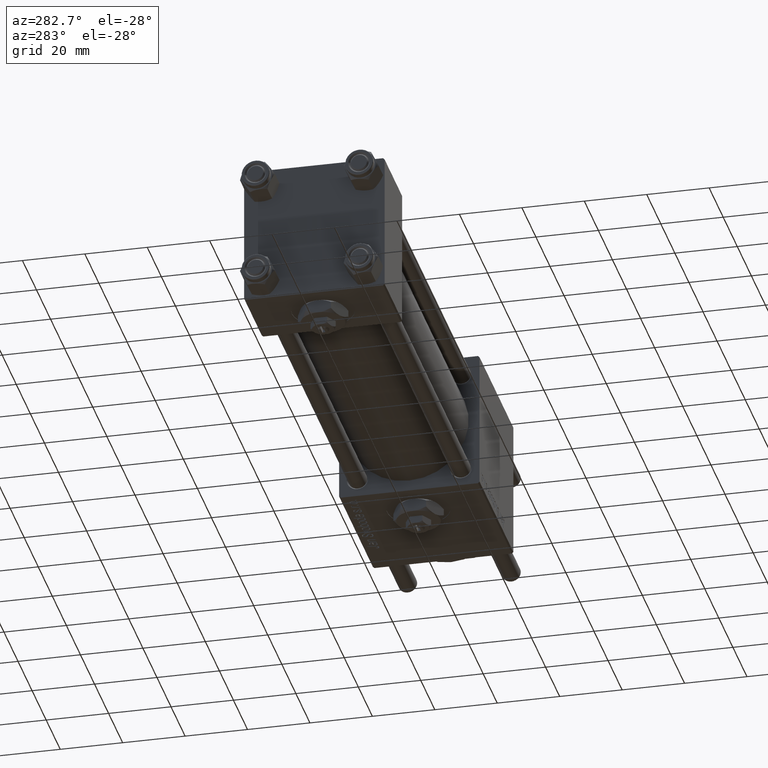
[diagram: clean part render]
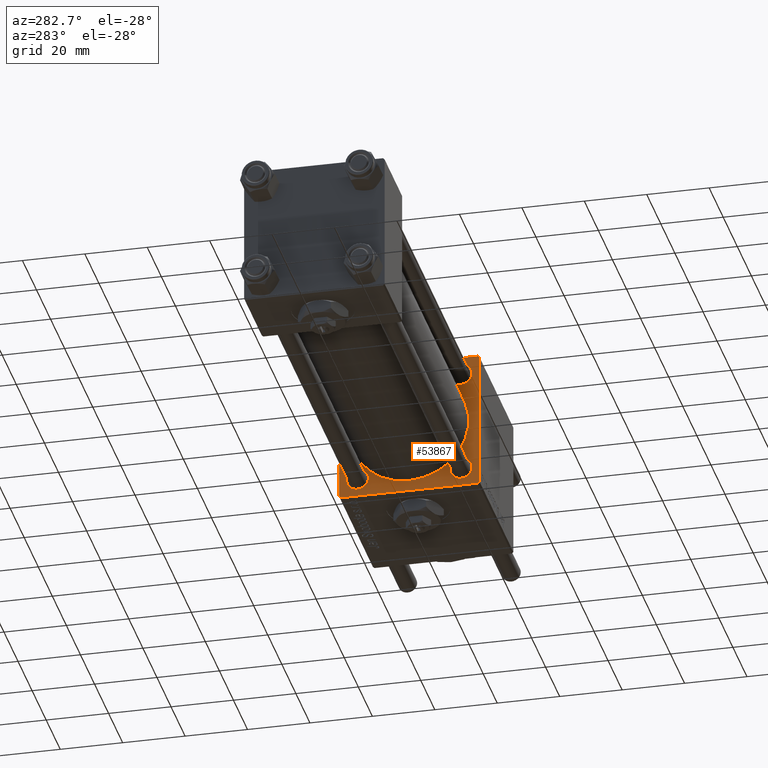
[diagram: same view with one face highlighted and labeled with its STEP entity id]
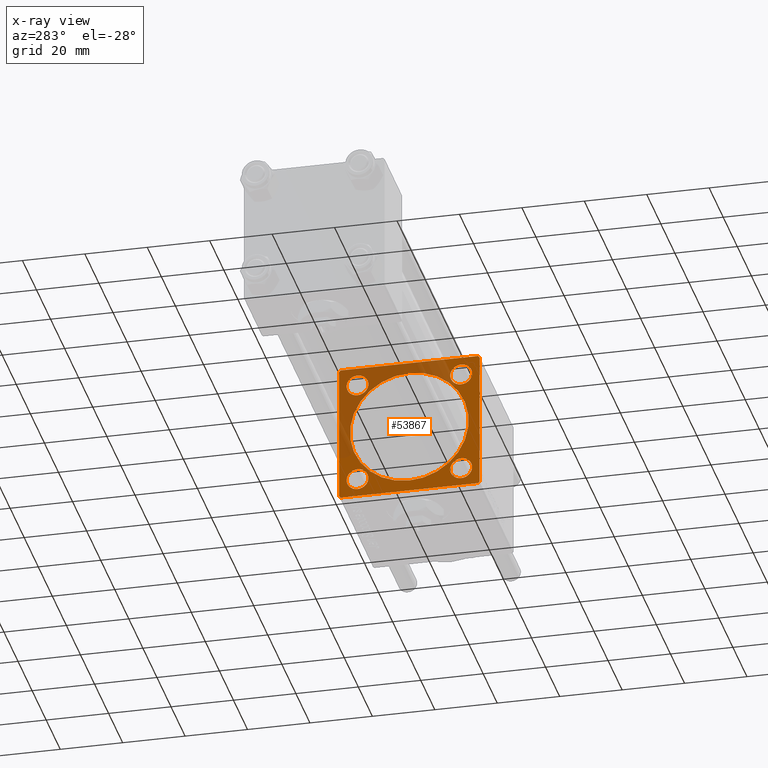
[diagram: x-ray of the same camera — body ghosted, the highlighted face saturated]
A machine part, auxiliary view. The second image highlights one B-rep face of the part: STEP entity #53867.
The next image is the same camera in x-ray: the body ghosted, the highlighted face saturated — about 38% of this face is hidden behind the body in this view.
In plain terms, the highlighted planar face has unit normal (-1, 0, 0).
Its self-contained STEP definition (entity closure, byte-faithful):
#124 = ORIENTED_EDGE ( 'NONE', *, *, #17806, .T. ) ;
#281 = CIRCLE ( 'NONE', #28366, 3.500000000000031086 ) ;
#553 = CARTESIAN_POINT ( 'NONE',  ( 135.0000000000000000, 16.59999999999999787, 16.60000000000000497 ) ) ;
#715 = LINE ( 'NONE', #24382, #4005 ) ;
#938 = EDGE_CURVE ( 'NONE', #56659, #7124, #30678, .T. ) ;
#951 = CARTESIAN_POINT ( 'NONE',  ( 135.0000000000000000, -2.602085213965210642E-15, 19.00000000000000000 ) ) ;
#1649 = DIRECTION ( 'NONE',  ( 1.000000000000000000, -0.000000000000000000, 0.000000000000000000 ) ) ;
#2071 = EDGE_CURVE ( 'NONE', #2910, #37946, #21036, .T. ) ;
#2356 = EDGE_CURVE ( 'NONE', #35339, #23834, #54962, .T. ) ;
#2454 = LINE ( 'NONE', #20949, #12959 ) ;
#2595 = LINE ( 'NONE', #25962, #28504 ) ;
#2910 = VERTEX_POINT ( 'NONE', #31744 ) ;
#2950 = DIRECTION ( 'NONE',  ( 0.000000000000000000, -0.7071067811865426878, 0.7071067811865524577 ) ) ;
#3552 = LINE ( 'NONE', #54533, #21421 ) ;
#3647 = CARTESIAN_POINT ( 'NONE',  ( 135.0000000000000000, -22.49999999999999645, 22.49999999999999289 ) ) ;
#4005 = VECTOR ( 'NONE', #14655, 1000.000000000000114 ) ;
#4110 = EDGE_LOOP ( 'NONE', ( #49326, #45379 ) ) ;
#4224 = EDGE_LOOP ( 'NONE', ( #31665, #16918, #28049, #124, #53052, #27489, #40891, #33899 ) ) ;
#4659 = CARTESIAN_POINT ( 'NONE',  ( 135.0000000000000000, 22.24999999999999645, -22.24999999999999645 ) ) ;
#5643 = EDGE_CURVE ( 'NONE', #13336, #56236, #54335, .T. ) ;
#5696 = DIRECTION ( 'NONE',  ( 0.000000000000000000, 0.000000000000000000, -1.000000000000000000 ) ) ;
#6549 = ORIENTED_EDGE ( 'NONE', *, *, #45748, .T. ) ;
#6843 = ORIENTED_EDGE ( 'NONE', *, *, #11295, .T. ) ;
#6896 = AXIS2_PLACEMENT_3D ( 'NONE', #29028, #43288, #38724 ) ;
#7000 = PLANE ( 'NONE',  #29618 ) ;
#7124 = VERTEX_POINT ( 'NONE', #55335 ) ;
#7596 = DIRECTION ( 'NONE',  ( 0.000000000000000000, 0.000000000000000000, 1.000000000000000000 ) ) ;
#8021 = ORIENTED_EDGE ( 'NONE', *, *, #938, .T. ) ;
#8660 = CARTESIAN_POINT ( 'NONE',  ( 135.0000000000000000, -21.99999999999995381, -22.50000000000000000 ) ) ;
#8818 = CARTESIAN_POINT ( 'NONE',  ( 135.0000000000000000, -22.49999999999999645, 21.99999999999999289 ) ) ;
#9121 = DIRECTION ( 'NONE',  ( 0.000000000000000000, 0.000000000000000000, -1.000000000000000000 ) ) ;
#10119 = DIRECTION ( 'NONE',  ( -0.000000000000000000, -0.7071067811865474617, -0.7071067811865474617 ) ) ;
#10563 = DIRECTION ( 'NONE',  ( 0.000000000000000000, 0.000000000000000000, 1.000000000000000000 ) ) ;
#11295 = EDGE_CURVE ( 'NONE', #58074, #14435, #18422, .T. ) ;
#11325 = AXIS2_PLACEMENT_3D ( 'NONE', #16251, #27400, #17677 ) ;
#11553 = FACE_OUTER_BOUND ( 'NONE', #4224, .T. ) ;
#11941 = CARTESIAN_POINT ( 'NONE',  ( 135.0000000000000000, 16.59999999999999787, -16.60000000000000497 ) ) ;
#12028 = VERTEX_POINT ( 'NONE', #8660 ) ;
#12246 = AXIS2_PLACEMENT_3D ( 'NONE', #27996, #50758, #37084 ) ;
#12959 = VECTOR ( 'NONE', #15791, 1000.000000000000000 ) ;
#13336 = VERTEX_POINT ( 'NONE', #8818 ) ;
#13886 = DIRECTION ( 'NONE',  ( 1.000000000000000000, -0.000000000000000000, 0.000000000000000000 ) ) ;
#14138 = EDGE_CURVE ( 'NONE', #16303, #41413, #46250, .T. ) ;
#14435 = VERTEX_POINT ( 'NONE', #951 ) ;
#14655 = DIRECTION ( 'NONE',  ( 0.000000000000000000, 0.7071067811865474617, -0.7071067811865474617 ) ) ;
#14979 = VERTEX_POINT ( 'NONE', #15559 ) ;
#15559 = CARTESIAN_POINT ( 'NONE',  ( 135.0000000000000000, 22.00000000000000355, 22.50000000000000355 ) ) ;
#15642 = DIRECTION ( 'NONE',  ( 0.000000000000000000, -1.000000000000000000, -2.312964634635742957E-16 ) ) ;
#15791 = DIRECTION ( 'NONE',  ( 0.000000000000000000, -1.000000000000000000, -7.709882115452476934E-17 ) ) ;
#16251 = CARTESIAN_POINT ( 'NONE',  ( 135.0000000000000000, -16.59999999999999076, 16.60000000000000853 ) ) ;
#16303 = VERTEX_POINT ( 'NONE', #24272 ) ;
#16406 = FACE_BOUND ( 'NONE', #44054, .T. ) ;
#16897 = CIRCLE ( 'NONE', #32425, 3.500000000000031086 ) ;
#16902 = AXIS2_PLACEMENT_3D ( 'NONE', #11941, #1649, #25318 ) ;
#16918 = ORIENTED_EDGE ( 'NONE', *, *, #40786, .T. ) ;
#17155 = ORIENTED_EDGE ( 'NONE', *, *, #35395, .T. ) ;
#17339 = LINE ( 'NONE', #35867, #34172 ) ;
#17482 = AXIS2_PLACEMENT_3D ( 'NONE', #24222, #28180, #5696 ) ;
#17677 = DIRECTION ( 'NONE',  ( 0.000000000000000000, 0.000000000000000000, 1.000000000000000000 ) ) ;
#17806 = EDGE_CURVE ( 'NONE', #13336, #40321, #48227, .T. ) ;
#17906 = CARTESIAN_POINT ( 'NONE',  ( 135.0000000000000000, -16.59999999999999076, -16.60000000000000853 ) ) ;
#18418 = CIRCLE ( 'NONE', #26200, 3.500000000000031086 ) ;
#18422 = CIRCLE ( 'NONE', #40713, 19.00000000000000000 ) ;
#20949 = CARTESIAN_POINT ( 'NONE',  ( 135.0000000000000000, 22.50000000000000355, -22.49999999999999645 ) ) ;
#21036 = CIRCLE ( 'NONE', #11325, 3.500000000000031086 ) ;
#21421 = VECTOR ( 'NONE', #2950, 1000.000000000000000 ) ;
#23609 = DIRECTION ( 'NONE',  ( 0.000000000000000000, 0.000000000000000000, 1.000000000000000000 ) ) ;
#23738 = CARTESIAN_POINT ( 'NONE',  ( 135.0000000000000000, 16.59999999999999787, 20.10000000000003340 ) ) ;
#23834 = VERTEX_POINT ( 'NONE', #53172 ) ;
#24222 = CARTESIAN_POINT ( 'NONE',  ( 135.0000000000000000, -2.602085213965210642E-15, 0.000000000000000000 ) ) ;
#24272 = CARTESIAN_POINT ( 'NONE',  ( 135.0000000000000000, 22.50000000000000355, -21.99999999999998224 ) ) ;
#24366 = CARTESIAN_POINT ( 'NONE',  ( 135.0000000000000000, 16.59999999999999787, -13.10000000000000142 ) ) ;
#24382 = CARTESIAN_POINT ( 'NONE',  ( 135.0000000000000000, 22.25000000000000355, 22.25000000000000355 ) ) ;
#25172 = CARTESIAN_POINT ( 'NONE',  ( 135.0000000000000000, -16.59999999999999076, 16.60000000000000853 ) ) ;
#25318 = DIRECTION ( 'NONE',  ( 0.000000000000000000, 0.000000000000000000, 1.000000000000000000 ) ) ;
#25330 = EDGE_LOOP ( 'NONE', ( #17155, #6843 ) ) ;
#25537 = CARTESIAN_POINT ( 'NONE',  ( 135.0000000000000000, 0.000000000000000000, 0.000000000000000000 ) ) ;
#25831 = DIRECTION ( 'NONE',  ( -1.000000000000000000, 0.000000000000000000, -0.000000000000000000 ) ) ;
#25962 = CARTESIAN_POINT ( 'NONE',  ( 135.0000000000000000, 22.50000000000000355, 22.50000000000000355 ) ) ;
#26200 = AXIS2_PLACEMENT_3D ( 'NONE', #25172, #52796, #58227 ) ;
#27400 = DIRECTION ( 'NONE',  ( 1.000000000000000000, -0.000000000000000000, 0.000000000000000000 ) ) ;
#27489 = ORIENTED_EDGE ( 'NONE', *, *, #42297, .T. ) ;
#27996 = CARTESIAN_POINT ( 'NONE',  ( 135.0000000000000000, 16.59999999999999787, -16.60000000000000497 ) ) ;
#28049 = ORIENTED_EDGE ( 'NONE', *, *, #5643, .F. ) ;
#28057 = CARTESIAN_POINT ( 'NONE',  ( 135.0000000000000000, -16.59999999999999076, 20.10000000000003695 ) ) ;
#28180 = DIRECTION ( 'NONE',  ( 1.000000000000000000, 0.000000000000000000, 0.000000000000000000 ) ) ;
#28366 = AXIS2_PLACEMENT_3D ( 'NONE', #46700, #41849, #10563 ) ;
#28504 = VECTOR ( 'NONE', #15642, 1000.000000000000000 ) ;
#29028 = CARTESIAN_POINT ( 'NONE',  ( 135.0000000000000000, -16.59999999999999076, -16.60000000000000853 ) ) ;
#29426 = CARTESIAN_POINT ( 'NONE',  ( 135.0000000000000000, -22.24999999999999289, 22.24999999999999289 ) ) ;
#29618 = AXIS2_PLACEMENT_3D ( 'NONE', #25537, #25831, #34942 ) ;
#30067 = CIRCLE ( 'NONE', #6896, 3.500000000000003109 ) ;
#30678 = CIRCLE ( 'NONE', #12246, 3.500000000000003109 ) ;
#30690 = DIRECTION ( 'NONE',  ( 0.000000000000000000, 0.000000000000000000, -1.000000000000000000 ) ) ;
#31665 = ORIENTED_EDGE ( 'NONE', *, *, #49837, .T. ) ;
#31744 = CARTESIAN_POINT ( 'NONE',  ( 135.0000000000000000, -16.59999999999999076, 13.09999999999997655 ) ) ;
#32391 = VERTEX_POINT ( 'NONE', #23738 ) ;
#32415 = CARTESIAN_POINT ( 'NONE',  ( 135.0000000000000000, -22.49999999999999645, -21.99999999999995026 ) ) ;
#32425 = AXIS2_PLACEMENT_3D ( 'NONE', #553, #13886, #23609 ) ;
#33595 = EDGE_LOOP ( 'NONE', ( #48136, #6549 ) ) ;
#33752 = FACE_BOUND ( 'NONE', #33595, .T. ) ;
#33899 = ORIENTED_EDGE ( 'NONE', *, *, #14138, .T. ) ;
#34002 = CARTESIAN_POINT ( 'NONE',  ( 135.0000000000000000, -16.59999999999999076, -20.10000000000000853 ) ) ;
#34051 = VECTOR ( 'NONE', #43978, 1000.000000000000114 ) ;
#34172 = VECTOR ( 'NONE', #9121, 1000.000000000000000 ) ;
#34358 = EDGE_CURVE ( 'NONE', #37946, #2910, #18418, .T. ) ;
#34942 = DIRECTION ( 'NONE',  ( -0.000000000000000000, 0.000000000000000000, 1.000000000000000000 ) ) ;
#34979 = DIRECTION ( 'NONE',  ( 1.000000000000000000, 0.000000000000000000, 0.000000000000000000 ) ) ;
#35242 = DIRECTION ( 'NONE',  ( 1.000000000000000000, -0.000000000000000000, 0.000000000000000000 ) ) ;
#35339 = VERTEX_POINT ( 'NONE', #34002 ) ;
#35395 = EDGE_CURVE ( 'NONE', #14435, #58074, #59156, .T. ) ;
#35800 = CARTESIAN_POINT ( 'NONE',  ( 135.0000000000000000, -2.752562955852396712E-16, -19.00000000000000000 ) ) ;
#35867 = CARTESIAN_POINT ( 'NONE',  ( 135.0000000000000000, 22.50000000000000355, 22.50000000000000355 ) ) ;
#36251 = CARTESIAN_POINT ( 'NONE',  ( 135.0000000000000000, 16.59999999999999787, 13.09999999999997300 ) ) ;
#36289 = ORIENTED_EDGE ( 'NONE', *, *, #37867, .T. ) ;
#37084 = DIRECTION ( 'NONE',  ( 0.000000000000000000, 0.000000000000000000, 1.000000000000000000 ) ) ;
#37867 = EDGE_CURVE ( 'NONE', #23834, #35339, #30067, .T. ) ;
#37946 = VERTEX_POINT ( 'NONE', #28057 ) ;
#38724 = DIRECTION ( 'NONE',  ( 0.000000000000000000, 0.000000000000000000, 1.000000000000000000 ) ) ;
#40321 = VERTEX_POINT ( 'NONE', #42222 ) ;
#40713 = AXIS2_PLACEMENT_3D ( 'NONE', #43785, #34979, #48931 ) ;
#40786 = EDGE_CURVE ( 'NONE', #12028, #56236, #3552, .T. ) ;
#40886 = ORIENTED_EDGE ( 'NONE', *, *, #2356, .T. ) ;
#40891 = ORIENTED_EDGE ( 'NONE', *, *, #44402, .T. ) ;
#41413 = VERTEX_POINT ( 'NONE', #58844 ) ;
#41849 = DIRECTION ( 'NONE',  ( 1.000000000000000000, -0.000000000000000000, 0.000000000000000000 ) ) ;
#42222 = CARTESIAN_POINT ( 'NONE',  ( 135.0000000000000000, -21.99999999999998224, 22.49999999999999289 ) ) ;
#42297 = EDGE_CURVE ( 'NONE', #14979, #59409, #715, .T. ) ;
#43288 = DIRECTION ( 'NONE',  ( 1.000000000000000000, -0.000000000000000000, 0.000000000000000000 ) ) ;
#43785 = CARTESIAN_POINT ( 'NONE',  ( 135.0000000000000000, -2.602085213965210642E-15, 0.000000000000000000 ) ) ;
#43978 = DIRECTION ( 'NONE',  ( -0.000000000000000000, 0.7071067811865474617, 0.7071067811865474617 ) ) ;
#44054 = EDGE_LOOP ( 'NONE', ( #36289, #40886 ) ) ;
#44402 = EDGE_CURVE ( 'NONE', #59409, #16303, #17339, .T. ) ;
#44428 = EDGE_LOOP ( 'NONE', ( #8021, #50541 ) ) ;
#45379 = ORIENTED_EDGE ( 'NONE', *, *, #2071, .T. ) ;
#45748 = EDGE_CURVE ( 'NONE', #48197, #32391, #281, .T. ) ;
#46250 = LINE ( 'NONE', #4659, #56171 ) ;
#46700 = CARTESIAN_POINT ( 'NONE',  ( 135.0000000000000000, 16.59999999999999787, 16.60000000000000497 ) ) ;
#48136 = ORIENTED_EDGE ( 'NONE', *, *, #56212, .T. ) ;
#48197 = VERTEX_POINT ( 'NONE', #36251 ) ;
#48227 = LINE ( 'NONE', #29426, #34051 ) ;
#48931 = DIRECTION ( 'NONE',  ( 0.000000000000000000, 0.000000000000000000, -1.000000000000000000 ) ) ;
#49244 = VECTOR ( 'NONE', #30690, 1000.000000000000000 ) ;
#49326 = ORIENTED_EDGE ( 'NONE', *, *, #34358, .T. ) ;
#49428 = EDGE_CURVE ( 'NONE', #14979, #40321, #2595, .T. ) ;
#49837 = EDGE_CURVE ( 'NONE', #41413, #12028, #2454, .T. ) ;
#50541 = ORIENTED_EDGE ( 'NONE', *, *, #51280, .T. ) ;
#50758 = DIRECTION ( 'NONE',  ( 1.000000000000000000, -0.000000000000000000, 0.000000000000000000 ) ) ;
#51280 = EDGE_CURVE ( 'NONE', #7124, #56659, #51809, .T. ) ;
#51809 = CIRCLE ( 'NONE', #16902, 3.500000000000003109 ) ;
#52261 = FACE_BOUND ( 'NONE', #44428, .T. ) ;
#52796 = DIRECTION ( 'NONE',  ( 1.000000000000000000, -0.000000000000000000, 0.000000000000000000 ) ) ;
#52857 = FACE_BOUND ( 'NONE', #25330, .T. ) ;
#53052 = ORIENTED_EDGE ( 'NONE', *, *, #49428, .F. ) ;
#53172 = CARTESIAN_POINT ( 'NONE',  ( 135.0000000000000000, -16.59999999999999076, -13.10000000000000320 ) ) ;
#53867 = ADVANCED_FACE ( 'NONE', ( #55902, #33752, #52261, #16406, #52857, #11553 ), #7000, .T. ) ;
#54335 = LINE ( 'NONE', #3647, #49244 ) ;
#54533 = CARTESIAN_POINT ( 'NONE',  ( 135.0000000000000000, -22.25000000000013500, -22.24999999999982947 ) ) ;
#54549 = CARTESIAN_POINT ( 'NONE',  ( 135.0000000000000000, 22.50000000000000355, 22.00000000000000355 ) ) ;
#54962 = CIRCLE ( 'NONE', #59809, 3.500000000000003109 ) ;
#55335 = CARTESIAN_POINT ( 'NONE',  ( 135.0000000000000000, 16.59999999999999787, -20.10000000000000853 ) ) ;
#55902 = FACE_BOUND ( 'NONE', #4110, .T. ) ;
#56171 = VECTOR ( 'NONE', #10119, 1000.000000000000114 ) ;
#56212 = EDGE_CURVE ( 'NONE', #32391, #48197, #16897, .T. ) ;
#56236 = VERTEX_POINT ( 'NONE', #32415 ) ;
#56659 = VERTEX_POINT ( 'NONE', #24366 ) ;
#58074 = VERTEX_POINT ( 'NONE', #35800 ) ;
#58227 = DIRECTION ( 'NONE',  ( 0.000000000000000000, 0.000000000000000000, 1.000000000000000000 ) ) ;
#58844 = CARTESIAN_POINT ( 'NONE',  ( 135.0000000000000000, 22.00000000000000355, -22.49999999999999645 ) ) ;
#59156 = CIRCLE ( 'NONE', #17482, 19.00000000000000000 ) ;
#59409 = VERTEX_POINT ( 'NONE', #54549 ) ;
#59809 = AXIS2_PLACEMENT_3D ( 'NONE', #17906, #35242, #7596 ) ;